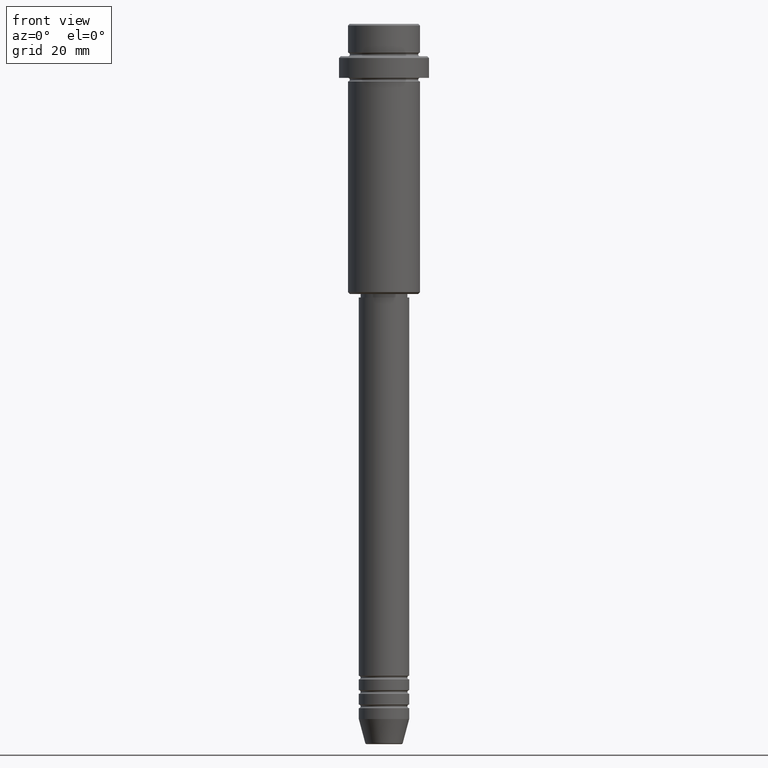
[diagram: clean part render]
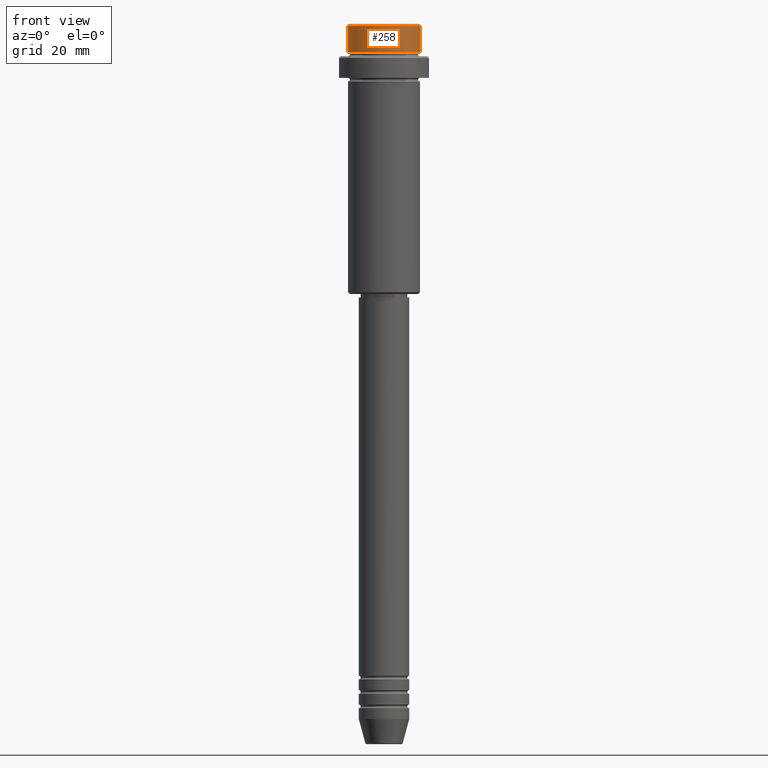
[diagram: same view with one face highlighted and labeled with its STEP entity id]
A machine part, front view. The second image highlights one B-rep face of the part: STEP entity #258.
In plain terms, the highlighted cylindrical surface (edge-blend (fillet) strip) has radius 10 mm, axis along (-0, -0, 1).
Its self-contained STEP definition (entity closure, byte-faithful):
#56 = LINE ( 'NONE', #693, #1378 ) ;
#60 = AXIS2_PLACEMENT_3D ( 'NONE', #189, #641, #1076 ) ;
#80 = CARTESIAN_POINT ( 'NONE',  ( 9.999999999999998224, 0.000000000000000000, -7.999999999999998224 ) ) ;
#132 = EDGE_LOOP ( 'NONE', ( #796, #1402, #185, #585 ) ) ;
#166 = FACE_OUTER_BOUND ( 'NONE', #132, .T. ) ;
#168 = VERTEX_POINT ( 'NONE', #832 ) ;
#185 = ORIENTED_EDGE ( 'NONE', *, *, #469, .T. ) ;
#189 = CARTESIAN_POINT ( 'NONE',  ( 0.000000000000000000, 0.000000000000000000, 0.000000000000000000 ) ) ;
#258 = ADVANCED_FACE ( 'NONE', ( #166 ), #297, .T. ) ;
#297 = CYLINDRICAL_SURFACE ( 'NONE', #60, 9.999999999999998224 ) ;
#446 = VERTEX_POINT ( 'NONE', #492 ) ;
#453 = DIRECTION ( 'NONE',  ( -0.000000000000000000, -0.000000000000000000, 1.000000000000000000 ) ) ;
#469 = EDGE_CURVE ( 'NONE', #676, #168, #56, .T. ) ;
#492 = CARTESIAN_POINT ( 'NONE',  ( -9.999999999999998224, 1.224646799147353059E-15, -7.999999999999998224 ) ) ;
#510 = DIRECTION ( 'NONE',  ( 1.000000000000000000, 0.000000000000000000, 0.000000000000000000 ) ) ;
#585 = ORIENTED_EDGE ( 'NONE', *, *, #928, .T. ) ;
#641 = DIRECTION ( 'NONE',  ( -0.000000000000000000, -0.000000000000000000, 1.000000000000000000 ) ) ;
#676 = VERTEX_POINT ( 'NONE', #80 ) ;
#693 = CARTESIAN_POINT ( 'NONE',  ( 9.999999999999998224, 0.000000000000000000, 0.000000000000000000 ) ) ;
#759 = VECTOR ( 'NONE', #453, 1000.000000000000000 ) ;
#796 = ORIENTED_EDGE ( 'NONE', *, *, #1294, .F. ) ;
#806 = LINE ( 'NONE', #1289, #759 ) ;
#832 = CARTESIAN_POINT ( 'NONE',  ( 9.999999999999998224, 0.000000000000000000, -0.4999999999999970024 ) ) ;
#872 = AXIS2_PLACEMENT_3D ( 'NONE', #1218, #1344, #1118 ) ;
#925 = VERTEX_POINT ( 'NONE', #927 ) ;
#927 = CARTESIAN_POINT ( 'NONE',  ( -9.999999999999998224, 1.224646799147353059E-15, -0.4999999999999970024 ) ) ;
#928 = EDGE_CURVE ( 'NONE', #168, #925, #1356, .T. ) ;
#954 = CARTESIAN_POINT ( 'NONE',  ( 0.000000000000000000, 0.000000000000000000, -7.999999999999998224 ) ) ;
#984 = AXIS2_PLACEMENT_3D ( 'NONE', #954, #1177, #510 ) ;
#1046 = CIRCLE ( 'NONE', #984, 9.999999999999998224 ) ;
#1076 = DIRECTION ( 'NONE',  ( 1.000000000000000000, 0.000000000000000000, 0.000000000000000000 ) ) ;
#1104 = EDGE_CURVE ( 'NONE', #446, #676, #1046, .T. ) ;
#1118 = DIRECTION ( 'NONE',  ( 1.000000000000000000, 0.000000000000000000, 0.000000000000000000 ) ) ;
#1177 = DIRECTION ( 'NONE',  ( -0.000000000000000000, -0.000000000000000000, 1.000000000000000000 ) ) ;
#1218 = CARTESIAN_POINT ( 'NONE',  ( 0.000000000000000000, 0.000000000000000000, -0.4999999999999970024 ) ) ;
#1289 = CARTESIAN_POINT ( 'NONE',  ( -9.999999999999998224, 1.224646799147353059E-15, 0.000000000000000000 ) ) ;
#1294 = EDGE_CURVE ( 'NONE', #446, #925, #806, .T. ) ;
#1344 = DIRECTION ( 'NONE',  ( 0.000000000000000000, 0.000000000000000000, -1.000000000000000000 ) ) ;
#1346 = DIRECTION ( 'NONE',  ( -0.000000000000000000, -0.000000000000000000, 1.000000000000000000 ) ) ;
#1356 = CIRCLE ( 'NONE', #872, 9.999999999999998224 ) ;
#1378 = VECTOR ( 'NONE', #1346, 1000.000000000000000 ) ;
#1402 = ORIENTED_EDGE ( 'NONE', *, *, #1104, .T. ) ;